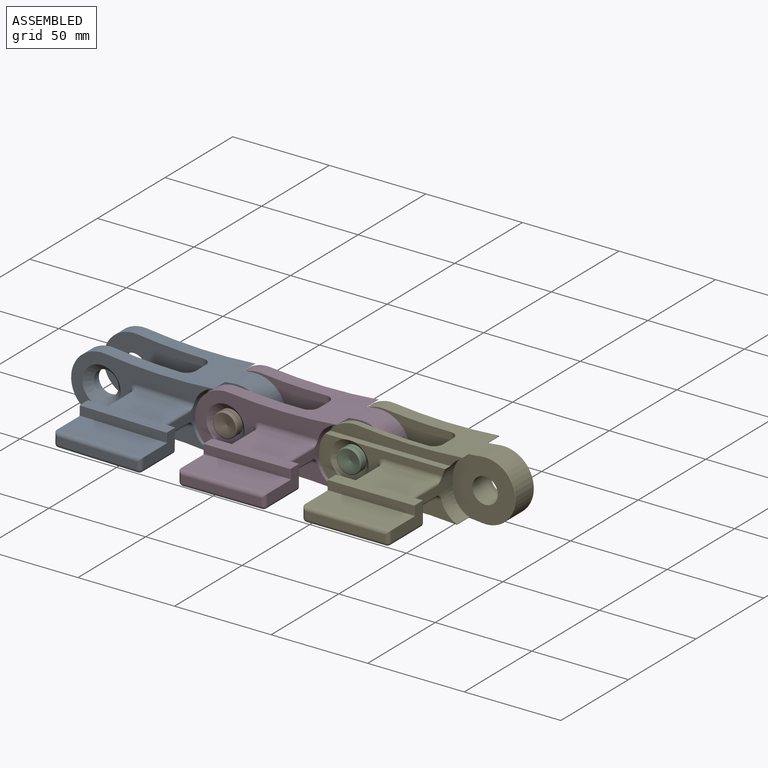
[diagram: assembled view]
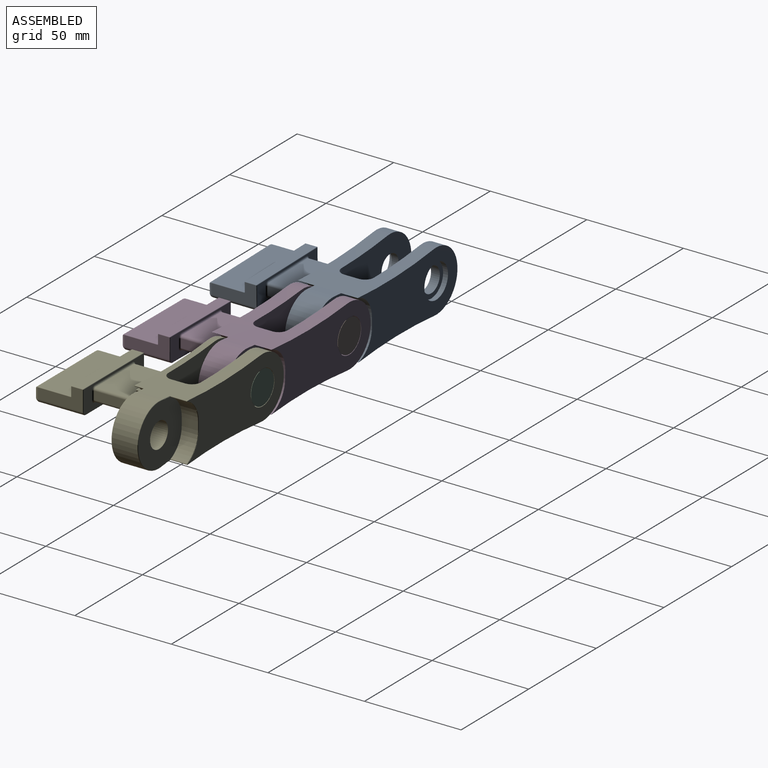
[diagram: assembled view, second angle]
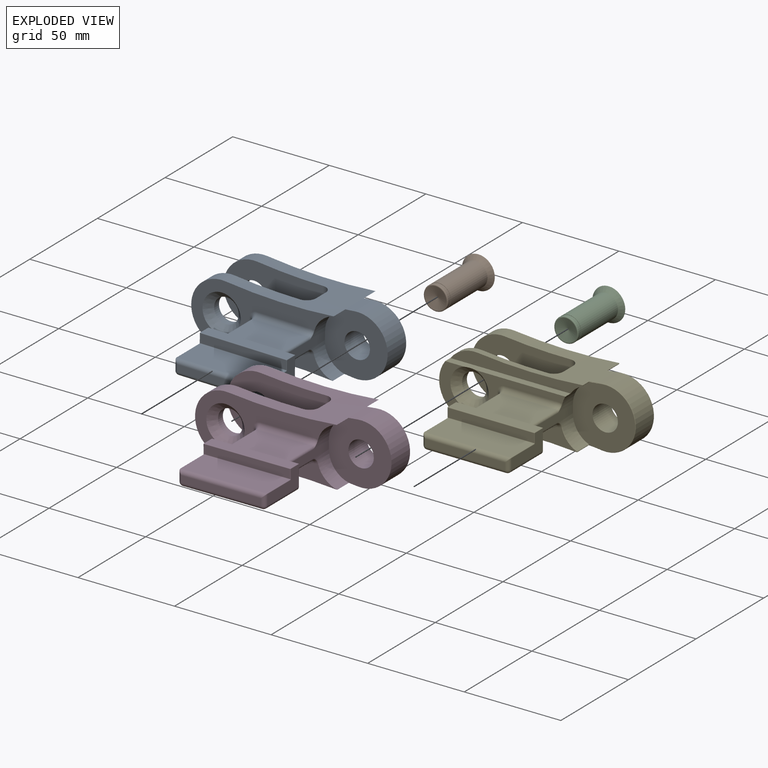
[diagram: exploded view]
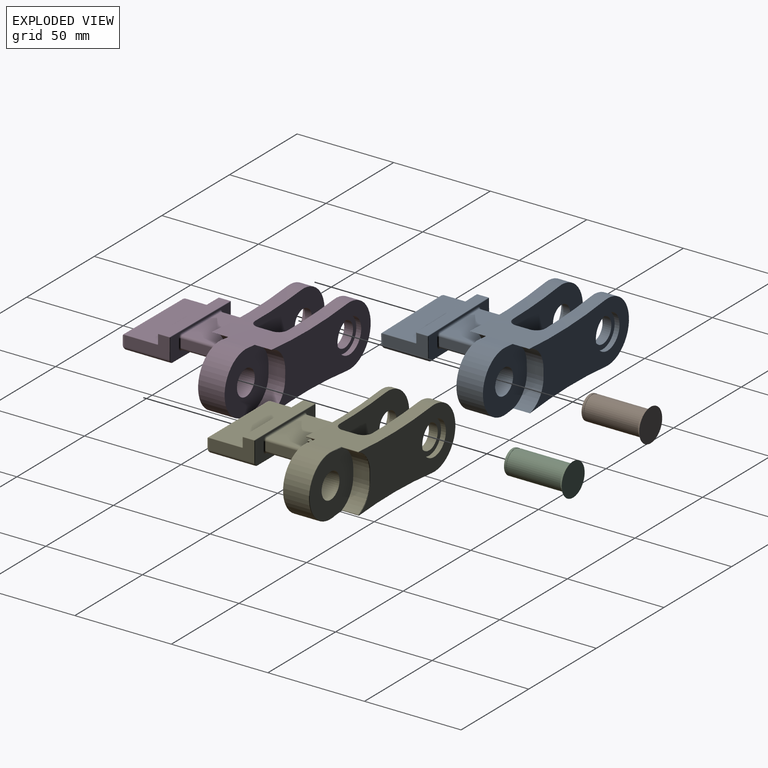
[diagram: exploded view, second angle]
ASSEMBLY  parts=5 mates=4
PART A: 86 faces, bbox 95.7x80x31.5 mm
  f0: plane 23.11x10.41mm, normal (1,0,0), area 153mm2, adj f49,f54,f65,f66,f68,f73,f74
  f1: plane 23.11x10.41mm, normal (-1,0,0), area 153mm2, adj f48,f53,f70,f72,f76,f82,f85
  f2: cylinder r=6.35mm len=12.7mm, axis (0,1,0), area 182.4mm2, adj f29,f33
  f3: cylinder r=279.4mm len=60.76mm, axis (0,-1,0), area 1166.2mm2, adj f5,f6,f7,f9,f10,f12,f14,f17
  f4: cylinder r=279.4mm len=60.76mm, axis (0,-1,0), area 1166.2mm2, adj f5,f6,f7,f9,f10,f13,f16,f17
  f5: cylinder r=15.75mm len=31.5mm, axis (0,-1,0), area 376.3mm2, adj f3,f4,f17,f29
  f6: cylinder r=15.75mm len=31.5mm, axis (0,-1,0), area 376.3mm2, adj f3,f4,f18,f30
  f7: cylinder r=15.75mm len=31.5mm, axis (0,-1,0), area 725.6mm2, adj f3,f4,f9,f10
  f8: cylinder r=6.6mm len=13.72mm, axis (0,-1,0), area 569.1mm2, adj f9,f10
  f9: plane 32.47x31.5mm, normal (0,1,0), area 695.7mm2, adj f3,f4,f7,f8,f11,f12,f13
  f10: plane 32.47x31.5mm, normal (0,-1,0), area 695.7mm2, adj f3,f4,f7,f8,f14,f15,f16
  f11: plane 8.64x4.32mm, normal (1,0,0), area 37.3mm2, adj f9,f12,f13,f17
  f12: cylinder r=13.38mm len=13.02mm, axis (0,-1,0), area 154.6mm2, adj f3,f9,f11,f17
  f13: cylinder r=13.38mm len=13.02mm, axis (0,-1,0), area 154.6mm2, adj f4,f9,f11,f17
  f14: cylinder r=13.38mm len=13.02mm, axis (0,-1,0), area 157.4mm2, adj f3,f10,f15,f18,f34
  f15: plane 31.5x4.32mm, normal (1,0,0), area 136mm2, adj f10,f14,f16,f19,f20,f59
  f16: cylinder r=13.38mm len=13.02mm, axis (0,-1,0), area 157.4mm2, adj f4,f10,f15,f18,f40
  f17: plane 73.5x31.5mm, normal (0,1,0), area 1580.9mm2, adj f3,f4,f5,f11,f12,f13,f32
  f18: plane 73.5x31.5mm, normal (0,-1,0), area 1122mm2, adj f3,f4,f6,f14,f16,f34,f35,f36
  f19: cylinder r=1.27mm len=20.32mm, axis (0,1,0), area 40.5mm2, adj f15,f25,f34,f57
  f20: cylinder r=1.27mm len=20.32mm, axis (0,1,0), area 40.5mm2, adj f15,f21,f40,f61
  f21: plane 28.19x20.32mm, normal (0,0,-1), area 572.9mm2, adj f20,f22,f39,f63
  f22: cylinder r=1.27mm len=20.32mm, axis (0,1,0), area 40.5mm2, adj f21,f23,f38,f62
  f23: plane 20.32x4.32mm, normal (-1,0,0), area 87.7mm2, adj f22,f24,f37,f60
  f24: cylinder r=1.27mm len=20.32mm, axis (0,1,0), area 40.5mm2, adj f23,f25,f36,f58
  f25: plane 28.19x20.32mm, normal (0,0,1), area 572.9mm2, adj f19,f24,f35,f56
  f26: plane 28.24x7.26mm, normal (-1,0,0), area 205.1mm2, adj f3,f4,f27,f28
  f27: cylinder r=4.75mm len=28.24mm, axis (0,0,1), area 209.9mm2, adj f3,f4,f26,f29
  f28: cylinder r=4.75mm len=28.24mm, axis (0,0,1), area 209.9mm2, adj f3,f4,f26,f30
  f29: plane 51.31x31.5mm, normal (0,-1,0), area 1297.9mm2, adj f2,f3,f4,f5,f27
  f30: plane 51.31x31.5mm, normal (0,1,0), area 1297.9mm2, adj f3,f4,f6,f28,f31
  f31: cylinder r=6.35mm len=12.7mm, axis (0,-1,0), area 141.9mm2, adj f30,f41
  f32: cylinder r=8.76mm len=17.53mm, axis (0,1,0), area 139.9mm2, adj f17,f33
  f33: plane 17.53x17.53mm, normal (0,1,0), area 114.6mm2, adj f2,f32
  f34: torus R=3.81mm, axis (0,1,0), area 6.4mm2, adj f14,f18,f19,f35
  f35: cylinder r=2.54mm len=28.19mm, axis (1,0,0), area 112.5mm2, adj f18,f25,f34,f36
  f36: torus R=3.81mm, axis (0,1,0), area 13.7mm2, adj f18,f24,f35,f37
  f37: cylinder r=2.54mm len=4.32mm, axis (0,0,1), area 17.2mm2, adj f18,f23,f36,f38
  f38: torus R=3.81mm, axis (0,1,0), area 13.7mm2, adj f18,f22,f37,f39
  f39: cylinder r=2.54mm len=28.19mm, axis (-1,0,0), area 112.5mm2, adj f18,f21,f38,f40
  f40: torus R=3.81mm, axis (0,1,0), area 6.4mm2, adj f16,f18,f20,f39
  f41: cone r=6.35mm half-angle=45deg, axis (0,-1,0), area 256.8mm2, adj f18,f31
  f42: plane 41.05x23.11mm, normal (0,0,-1), area 948.7mm2, adj f48,f49,f50,f80
  f43: plane 44.6x5.84mm, normal (0,0,1), area 260.6mm2, adj f74,f75,f81,f82
  f44: plane 41.05x3.56mm, normal (0,-1,0), area 146mm2, adj f50,f53,f54,f55
  f45: plane 44.6x12.19mm, normal (0,1,0), area 275.6mm2, adj f56,f57,f58,f59,f60,f61,f62,f63
  f46: plane 44.6x4.57mm, normal (0,-1,0), area 203.9mm2, adj f68,f69,f75,f76
  f47: plane 44.6x16.76mm, normal (0,0,1), area 747.7mm2, adj f55,f65,f69,f70
  f48: cylinder r=2.03mm len=23.11mm, axis (0,-1,0), area 73.8mm2, adj f1,f42,f51,f83
  f49: cylinder r=2.03mm len=23.11mm, axis (0,1,0), area 73.8mm2, adj f0,f42,f52,f77
  f50: cylinder r=2.03mm len=41.05mm, axis (-1,0,0), area 131mm2, adj f42,f44,f51,f52
  f51: sphere r=2.03mm, area 6.5mm2, adj f48,f50,f53
  f52: sphere r=2.03mm, area 6.5mm2, adj f49,f50,f54
  f53: cylinder r=2.03mm len=5.33mm, axis (0,0,1), area 15mm2, adj f1,f44,f51,f67
  f54: cylinder r=2.03mm len=5.33mm, axis (0,0,-1), area 15mm2, adj f0,f44,f52,f64
  f55: cylinder r=2.03mm len=44.6mm, axis (1,0,0), area 138.2mm2, adj f44,f47,f64,f67
  f56: cylinder r=0.76mm len=28.19mm, axis (1,0,0), area 33.7mm2, adj f25,f45,f57,f58
  f57: torus R=2.03mm, axis (0,-1,0), area 2.9mm2, adj f19,f45,f56,f59
  f58: torus R=2.03mm, axis (0,-1,0), area 2.9mm2, adj f24,f45,f56,f60
  f59: cylinder r=0.76mm len=4.32mm, axis (0,0,1), area 5.2mm2, adj f15,f45,f57,f61
  f60: cylinder r=0.76mm len=4.32mm, axis (0,0,1), area 5.2mm2, adj f23,f45,f58,f62
  f61: torus R=2.03mm, axis (0,-1,0), area 2.9mm2, adj f20,f45,f59,f63
  f62: torus R=2.03mm, axis (0,-1,0), area 2.9mm2, adj f22,f45,f60,f63
  f63: cylinder r=0.76mm len=28.19mm, axis (-1,0,0), area 33.7mm2, adj f21,f45,f61,f62
  f64: bspline ~2.11x2.03mm, area 0.6mm2, adj f54,f55,f65
  f65: cylinder r=0.25mm len=16.76mm, axis (0,-1,0), area 6.7mm2, adj f0,f47,f64,f66
  f66: torus R=0.51mm, axis (-1,0,0), area 0.2mm2, adj f0,f65,f68,f69
  f67: bspline ~2.33x2.03mm, area 0.6mm2, adj f53,f55,f70
  f68: cylinder r=0.25mm len=4.57mm, axis (0,0,1), area 1.8mm2, adj f0,f46,f66,f71
  f69: cylinder r=0.25mm len=44.6mm, axis (-1,0,0), area 17.8mm2, adj f46,f47,f66,f72
  f70: cylinder r=0.25mm len=16.76mm, axis (0,1,0), area 6.7mm2, adj f1,f47,f67,f72
  f71: sphere r=0.25mm, area 0.1mm2, adj f68,f74,f75
  f72: torus R=0.51mm, axis (-1,0,0), area 0.2mm2, adj f1,f69,f70,f76
  f73: cylinder r=0.25mm len=10.41mm, axis (0,0,1), area 4.2mm2, adj f0,f45,f77,f78
  f74: cylinder r=0.25mm len=5.84mm, axis (0,-1,0), area 2.3mm2, adj f0,f43,f71,f78
  f75: cylinder r=0.25mm len=44.6mm, axis (1,0,0), area 17.8mm2, adj f43,f46,f71,f79
  f76: cylinder r=0.25mm len=4.57mm, axis (0,0,-1), area 1.8mm2, adj f1,f46,f72,f79
  f77: torus R=1.78mm, axis (0,-1,0), area 1.2mm2, adj f45,f49,f73,f80
  f78: sphere r=0.25mm, area 0.1mm2, adj f73,f74,f81
  f79: sphere r=0.25mm, area 0.1mm2, adj f75,f76,f82
  f80: cylinder r=0.25mm len=41.05mm, axis (1,0,0), area 16.4mm2, adj f42,f45,f77,f83
  f81: cylinder r=0.25mm len=44.6mm, axis (-1,0,0), area 17.8mm2, adj f43,f45,f78,f84
  f82: cylinder r=0.25mm len=5.84mm, axis (0,1,0), area 2.3mm2, adj f1,f43,f79,f84
  f83: torus R=1.78mm, axis (0,-1,0), area 1.2mm2, adj f45,f48,f80,f85
  f84: sphere r=0.25mm, area 0.1mm2, adj f81,f82,f85
  f85: cylinder r=0.25mm len=10.41mm, axis (0,0,-1), area 4.2mm2, adj f1,f45,f83,f84
PART B: 9 faces, bbox 17x31.7x17 mm
  f0: cylinder r=6.29mm len=12.57mm, axis (0,1,0), area 36.7mm2, adj f2,f3
  f1: cone r=6.29mm half-angle=75.4deg, axis (0,1,0), area 103.7mm2, adj f2
  f2: torus R=5.78mm, axis (0,-1,0), area 35.2mm2, adj f0,f1
  f3: plane 12.57x12.57mm, normal (0,-1,0), area 5.9mm2, adj f0,f5
  f4: plane 12.57x12.57mm, normal (0,1,0), area 5.9mm2, adj f5,f8
  f5: cylinder r=6.13mm len=12.27mm, axis (0,1,0), area 36.7mm2, adj f3,f4
  f6: plane 17.02x17.02mm, normal (0,-1,0), area 227.5mm2, adj f7
  f7: cone r=8.51mm half-angle=45deg, axis (0,-1,0), area 146.1mm2, adj f6,f8
  f8: cylinder r=6.29mm len=27.05mm, axis (0,1,0), area 1068.5mm2, adj f4,f7
PART C: same geometry as B
PART D: same geometry as A
PART E: 105 faces, bbox 97x80.1x34.2 mm
  f0: plane 71.54x25.2mm, normal (0,-1,0), area 800.8mm2, adj f5,f7,f34,f35,f36,f37,f38,f39
  f1: plane 23.11x10.41mm, normal (1,0,0), area 153mm2, adj f49,f54,f65,f66,f68,f73,f74
  f2: plane 23.11x10.41mm, normal (-1,0,0), area 153mm2, adj f48,f53,f70,f72,f76,f82,f85
  f3: cylinder r=6.35mm len=12.7mm, axis (0,1,0), area 182.4mm2, adj f29,f33
  f4: cylinder r=279.4mm len=60.76mm, axis (0,-1,0), area 918.9mm2, adj f6,f7,f8,f18,f26,f27,f28,f29
  f5: cylinder r=279.4mm len=60.76mm, axis (0,-1,0), area 1124.3mm2, adj f0,f6,f7,f8,f18,f26,f27,f28
  f6: cylinder r=15.75mm len=31.5mm, axis (0,-1,0), area 376.3mm2, adj f4,f5,f18,f29
  f7: cylinder r=15.75mm len=31.5mm, axis (0,-1,0), area 314.1mm2, adj f0,f4,f5,f30,f103,f104
  f8: cylinder r=15.75mm len=31.5mm, axis (0,-1,0), area 698.8mm2, adj f4,f5,f87,f98
  f9: cylinder r=6.6mm len=13.72mm, axis (0,-1,0), area 569.1mm2, adj f10,f11
  f10: plane 32.22x30.99mm, normal (0,1,0), area 679.7mm2, adj f9,f12,f13,f14,f86,f87,f88,f89
  f11: plane 32.22x30.99mm, normal (0,-1,0), area 679.7mm2, adj f9,f15,f16,f17,f96,f97,f98,f99
  f12: plane 8.38x4.32mm, normal (1,0,0), area 36.2mm2, adj f10,f13,f14,f92
  f13: cylinder r=13.38mm len=12.34mm, axis (0,-1,0), area 131.6mm2, adj f10,f12,f88,f90
  f14: cylinder r=13.38mm len=12.34mm, axis (0,-1,0), area 131.6mm2, adj f10,f12,f91,f93
  f15: cylinder r=13.38mm len=12.34mm, axis (0,-1,0), area 106.1mm2, adj f11,f16,f100,f101,f102,f103,f104
  f16: plane 31.5x4.32mm, normal (1,0,0), area 136mm2, adj f11,f15,f17,f19,f20,f59
  f17: cylinder r=13.38mm len=12.34mm, axis (0,-1,0), area 134.6mm2, adj f11,f16,f94,f95,f96
  f18: plane 71.54x31.5mm, normal (0,1,0), area 1570.9mm2, adj f4,f5,f6,f32,f88,f90,f91,f92
  f19: cylinder r=1.27mm len=20.32mm, axis (0,1,0), area 40.5mm2, adj f16,f25,f34,f57
  f20: cylinder r=1.27mm len=20.32mm, axis (0,1,0), area 40.5mm2, adj f16,f21,f40,f61
  f21: plane 28.19x20.32mm, normal (0,0,-1), area 572.9mm2, adj f20,f22,f39,f63
  f22: cylinder r=1.27mm len=20.32mm, axis (0,1,0), area 40.5mm2, adj f21,f23,f38,f62
  f23: plane 20.32x4.32mm, normal (-1,0,0), area 87.7mm2, adj f22,f24,f37,f60
  f24: cylinder r=1.27mm len=20.32mm, axis (0,1,0), area 40.5mm2, adj f23,f25,f36,f58
  f25: plane 28.19x20.32mm, normal (0,0,1), area 572.9mm2, adj f19,f24,f35,f56
  f26: plane 28.24x7.26mm, normal (-1,0,0), area 205.1mm2, adj f4,f5,f27,f28
  f27: cylinder r=4.75mm len=28.24mm, axis (0,0,1), area 209.9mm2, adj f4,f5,f26,f29
  f28: cylinder r=4.75mm len=28.24mm, axis (0,0,1), area 209.9mm2, adj f4,f5,f26,f30
  f29: plane 51.31x31.5mm, normal (0,-1,0), area 1297.9mm2, adj f3,f4,f5,f6,f27
  f30: plane 51.31x31.5mm, normal (0,1,0), area 1297.9mm2, adj f4,f5,f7,f28,f31
  f31: cylinder r=6.35mm len=12.7mm, axis (0,-1,0), area 141.9mm2, adj f30,f41
  f32: cylinder r=8.76mm len=17.53mm, axis (0,1,0), area 139.9mm2, adj f18,f33
  f33: plane 17.53x17.53mm, normal (0,1,0), area 114.6mm2, adj f3,f32
  f34: torus R=3.81mm, axis (0,1,0), area 5.7mm2, adj f0,f19,f35,f102
  f35: cylinder r=2.54mm len=28.19mm, axis (1,0,0), area 112.5mm2, adj f0,f25,f34,f36
  f36: torus R=3.81mm, axis (0,1,0), area 13.7mm2, adj f0,f24,f35,f37
  f37: cylinder r=2.54mm len=4.32mm, axis (0,0,1), area 17.2mm2, adj f0,f23,f36,f38
  f38: torus R=3.81mm, axis (0,1,0), area 13.7mm2, adj f0,f22,f37,f39
  f39: cylinder r=2.54mm len=28.19mm, axis (-1,0,0), area 112.5mm2, adj f0,f21,f38,f40
  f40: torus R=3.81mm, axis (0,1,0), area 5.7mm2, adj f0,f20,f39,f94
  f41: cone r=6.35mm half-angle=45deg, axis (0,-1,0), area 254.2mm2, adj f0,f31,f104
  f42: plane 41.05x23.11mm, normal (0,0,-1), area 948.7mm2, adj f48,f49,f50,f80
  f43: plane 44.6x5.84mm, normal (0,0,1), area 260.6mm2, adj f74,f75,f81,f82
  f44: plane 41.05x3.56mm, normal (0,-1,0), area 146mm2, adj f50,f53,f54,f55
  f45: plane 44.6x12.19mm, normal (0,1,0), area 275.6mm2, adj f56,f57,f58,f59,f60,f61,f62,f63
  f46: plane 44.6x4.57mm, normal (0,-1,0), area 203.9mm2, adj f68,f69,f75,f76
  f47: plane 44.6x16.76mm, normal (0,0,1), area 747.7mm2, adj f55,f65,f69,f70
  f48: cylinder r=2.03mm len=23.11mm, axis (0,-1,0), area 73.8mm2, adj f2,f42,f51,f83
  f49: cylinder r=2.03mm len=23.11mm, axis (0,1,0), area 73.8mm2, adj f1,f42,f52,f77
  f50: cylinder r=2.03mm len=41.05mm, axis (-1,0,0), area 131mm2, adj f42,f44,f51,f52
  f51: sphere r=2.03mm, area 6.5mm2, adj f48,f50,f53
  f52: sphere r=2.03mm, area 6.5mm2, adj f49,f50,f54
  f53: cylinder r=2.03mm len=5.33mm, axis (0,0,1), area 15mm2, adj f2,f44,f51,f67
  f54: cylinder r=2.03mm len=5.33mm, axis (0,0,-1), area 15mm2, adj f1,f44,f52,f64
  f55: cylinder r=2.03mm len=44.6mm, axis (1,0,0), area 138.2mm2, adj f44,f47,f64,f67
  f56: cylinder r=0.76mm len=28.19mm, axis (1,0,0), area 33.7mm2, adj f25,f45,f57,f58
  f57: torus R=2.03mm, axis (0,-1,0), area 2.9mm2, adj f19,f45,f56,f59
  f58: torus R=2.03mm, axis (0,-1,0), area 2.9mm2, adj f24,f45,f56,f60
  f59: cylinder r=0.76mm len=4.32mm, axis (0,0,1), area 5.2mm2, adj f16,f45,f57,f61
  f60: cylinder r=0.76mm len=4.32mm, axis (0,0,1), area 5.2mm2, adj f23,f45,f58,f62
  f61: torus R=2.03mm, axis (0,-1,0), area 2.9mm2, adj f20,f45,f59,f63
  f62: torus R=2.03mm, axis (0,-1,0), area 2.9mm2, adj f22,f45,f60,f63
  f63: cylinder r=0.76mm len=28.19mm, axis (-1,0,0), area 33.7mm2, adj f21,f45,f61,f62
  f64: bspline ~2.11x2.03mm, area 0.6mm2, adj f54,f55,f65
  f65: cylinder r=0.25mm len=16.76mm, axis (0,-1,0), area 6.7mm2, adj f1,f47,f64,f66
  f66: torus R=0.51mm, axis (-1,0,0), area 0.2mm2, adj f1,f65,f68,f69
  f67: bspline ~2.33x2.03mm, area 0.6mm2, adj f53,f55,f70
  f68: cylinder r=0.25mm len=4.57mm, axis (0,0,1), area 1.8mm2, adj f1,f46,f66,f71
  f69: cylinder r=0.25mm len=44.6mm, axis (-1,0,0), area 17.8mm2, adj f46,f47,f66,f72
  f70: cylinder r=0.25mm len=16.76mm, axis (0,1,0), area 6.7mm2, adj f2,f47,f67,f72
  f71: sphere r=0.25mm, area 0.1mm2, adj f68,f74,f75
  f72: torus R=0.51mm, axis (-1,0,0), area 0.2mm2, adj f2,f69,f70,f76
  f73: cylinder r=0.25mm len=10.41mm, axis (0,0,1), area 4.2mm2, adj f1,f45,f77,f78
  f74: cylinder r=0.25mm len=5.84mm, axis (0,-1,0), area 2.3mm2, adj f1,f43,f71,f78
  f75: cylinder r=0.25mm len=44.6mm, axis (1,0,0), area 17.8mm2, adj f43,f46,f71,f79
  f76: cylinder r=0.25mm len=4.57mm, axis (0,0,-1), area 1.8mm2, adj f2,f46,f72,f79
  f77: torus R=1.78mm, axis (0,-1,0), area 1.2mm2, adj f45,f49,f73,f80
  f78: sphere r=0.25mm, area 0.1mm2, adj f73,f74,f81
  f79: sphere r=0.25mm, area 0.1mm2, adj f75,f76,f82
  f80: cylinder r=0.25mm len=41.05mm, axis (1,0,0), area 16.4mm2, adj f42,f45,f77,f83
  f81: cylinder r=0.25mm len=44.6mm, axis (-1,0,0), area 17.8mm2, adj f43,f45,f78,f84
  f82: cylinder r=0.25mm len=5.84mm, axis (0,1,0), area 2.3mm2, adj f2,f43,f79,f84
  f83: torus R=1.78mm, axis (0,-1,0), area 1.2mm2, adj f45,f48,f80,f85
  f84: sphere r=0.25mm, area 0.1mm2, adj f81,f82,f85
  f85: cylinder r=0.25mm len=10.41mm, axis (0,0,-1), area 4.2mm2, adj f2,f45,f83,f84
  f86: torus R=279.65mm, axis (0,1,0), area 2.7mm2, adj f4,f10,f87,f88
  f87: torus R=15.49mm, axis (0,1,0), area 21mm2, adj f8,f10,f86,f89
  f88: cylinder r=0.25mm len=8.89mm, axis (0,-1,0), area 6.2mm2, adj f4,f10,f13,f18,f86,f90
  f89: torus R=279.65mm, axis (0,1,0), area 2.7mm2, adj f5,f10,f87,f91
  f90: torus R=13.64mm, axis (0,1,0), area 6.4mm2, adj f13,f18,f88,f92
  f91: cylinder r=0.25mm len=8.89mm, axis (0,-1,0), area 6.2mm2, adj f5,f10,f14,f18,f89,f93
  f92: cylinder r=0.25mm len=4.32mm, axis (0,0,1), area 1.7mm2, adj f12,f18,f90,f93
  f93: torus R=13.64mm, axis (0,1,0), area 6.4mm2, adj f14,f18,f91,f92
  f94: bspline ~4.08x2.79mm, area 1.2mm2, adj f17,f40,f95
  f95: torus R=13.64mm, axis (0,1,0), area 5mm2, adj f0,f17,f94,f96
  f96: cylinder r=0.25mm len=8.89mm, axis (0,-1,0), area 6.2mm2, adj f0,f5,f11,f17,f95,f97
  f97: torus R=279.65mm, axis (0,1,0), area 2.7mm2, adj f5,f11,f96,f98
  f98: torus R=15.49mm, axis (0,1,0), area 21mm2, adj f8,f11,f97,f99
  f99: torus R=279.65mm, axis (0,1,0), area 2.7mm2, adj f4,f11,f98,f100
  f100: cylinder r=0.25mm len=5.08mm, axis (0,-1,0), area 3.5mm2, adj f4,f11,f15,f99,f103
  f101: torus R=13.64mm, axis (0,1,0), area 1.7mm2, adj f0,f15,f102,f104
  f102: bspline ~4.08x2.79mm, area 1.2mm2, adj f15,f34,f101
  f103: plane 68.41x6.3mm, normal (0,-1,0), area 317.9mm2, adj f4,f7,f15,f100,f104
  f104: plane 62.28x3.88mm, normal (0,0,1), area 235.2mm2, adj f0,f7,f15,f41,f101,f103
PLACE A rot(axis=(0,1,0),1deg) t=(-192.54,0,0.99)mm
PLACE B rot(axis=(0.68,0,0.73),180deg) t=(-112.71,-23.58,-0.36)mm
PLACE C rot(axis=(-0.88,0,-0.48),180deg) t=(-48.53,-23.58,0)mm
PLACE D rot(axis=(0,-1,0),0.3deg) t=(-128.37,0,-0.45)mm
PLACE E at identity fixed
MATE revolute E.f41 <-> D.f7  axis (0,1,0) through (-48.53,-15.65,0)mm
MATE cylindrical C.f7 <-> E.f41  axis (0,1,0) through (-48.53,8.23,0)mm
MATE cylindrical B.f7 <-> D.f32  axis (0,1,0) through (-112.71,8.23,-0.36)mm
MATE revolute A.f8 <-> D.f32  axis (0,-1,0) through (-112.71,-14.12,-0.36)mm
